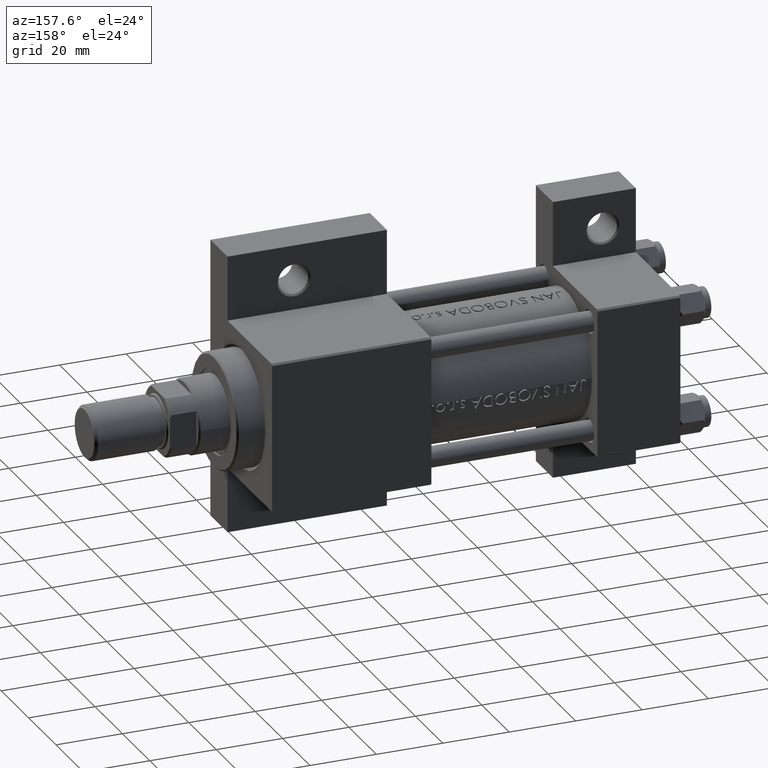
[diagram: clean part render]
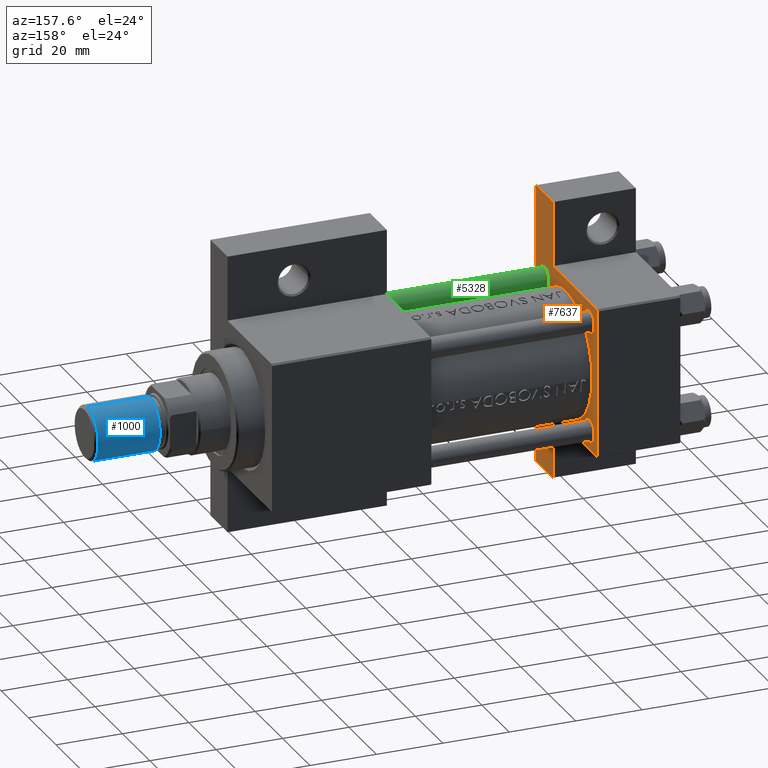
[diagram: same view with three faces highlighted in distinct colors, each labeled with its STEP entity id]
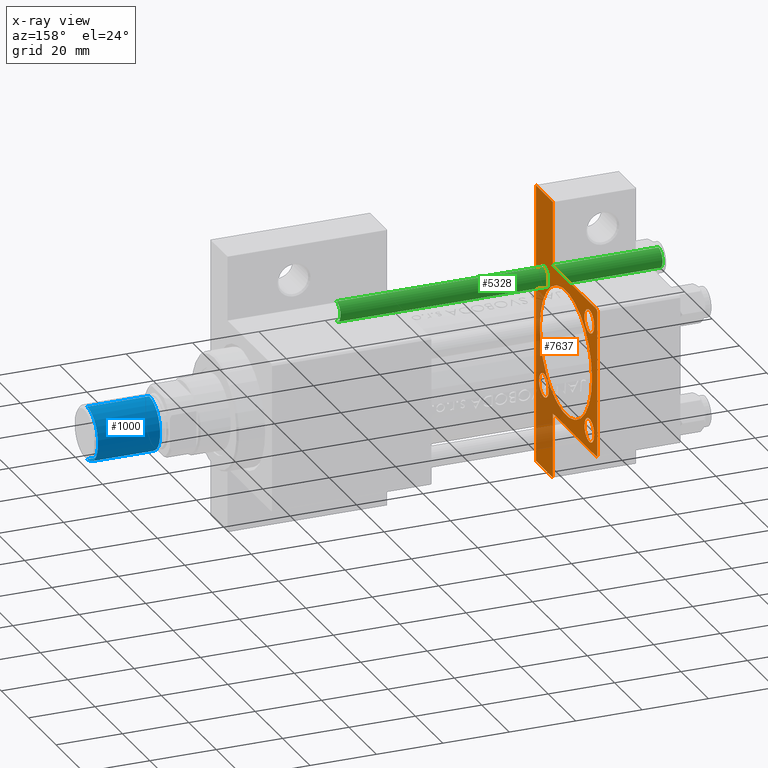
[diagram: x-ray of the same camera — body ghosted, the three highlighted faces saturated]
A machine part, auxiliary view with three faces highlighted in distinct colors.
The next image is the same camera in x-ray (body ghosted, the three faces saturated) — at least one of them is partly hidden behind the body in this view.
Their STEP definitions:

[orange] entity #7637 — the highlighted planar face has unit normal (-1, 0, -0).
#266 = VERTEX_POINT ( 'NONE', #45763 ) ;
#279 = ORIENTED_EDGE ( 'NONE', *, *, #29346, .T. ) ;
#505 = ORIENTED_EDGE ( 'NONE', *, *, #4724, .F. ) ;
#1014 = CARTESIAN_POINT ( 'NONE',  ( 25.00000000000000000, 16.59999999999999787, -13.10000000000000142 ) ) ;
#1082 = ORIENTED_EDGE ( 'NONE', *, *, #17509, .T. ) ;
#1232 = DIRECTION ( 'NONE',  ( 0.000000000000000000, -1.000000000000000000, -7.709882115452476934E-17 ) ) ;
#1313 = DIRECTION ( 'NONE',  ( 1.000000000000000000, -0.000000000000000000, 0.000000000000000000 ) ) ;
#1505 = DIRECTION ( 'NONE',  ( 0.000000000000000000, 0.000000000000000000, 1.000000000000000000 ) ) ;
#1737 = CARTESIAN_POINT ( 'NONE',  ( 25.00000000000000000, 16.59999999999999787, -20.10000000000000853 ) ) ;
#1784 = CARTESIAN_POINT ( 'NONE',  ( 25.00000000000000000, 16.59999999999999787, 16.60000000000000497 ) ) ;
#2246 = AXIS2_PLACEMENT_3D ( 'NONE', #13384, #12897, #1505 ) ;
#2306 = LINE ( 'NONE', #10767, #28794 ) ;
#2767 = VECTOR ( 'NONE', #15166, 1000.000000000000000 ) ;
#3015 = VERTEX_POINT ( 'NONE', #15890 ) ;
#3515 = FACE_BOUND ( 'NONE', #35931, .T. ) ;
#3750 = FACE_OUTER_BOUND ( 'NONE', #30235, .T. ) ;
#4011 = AXIS2_PLACEMENT_3D ( 'NONE', #21269, #7396, #39972 ) ;
#4233 = CARTESIAN_POINT ( 'NONE',  ( 25.00000000000000000, 16.59999999999999787, -16.60000000000000497 ) ) ;
#4312 = EDGE_CURVE ( 'NONE', #24206, #32638, #23291, .T. ) ;
#4600 = CIRCLE ( 'NONE', #40186, 19.00000000000000000 ) ;
#4707 = DIRECTION ( 'NONE',  ( 1.779203565104417375E-16, 1.000000000000000000, 0.000000000000000000 ) ) ;
#4724 = EDGE_CURVE ( 'NONE', #8901, #15880, #25490, .T. ) ;
#4804 = VECTOR ( 'NONE', #9687, 1000.000000000000000 ) ;
#5432 = ORIENTED_EDGE ( 'NONE', *, *, #37800, .F. ) ;
#5582 = CARTESIAN_POINT ( 'NONE',  ( 25.00000000000000000, 21.99999999999999289, 22.50000000000000355 ) ) ;
#6057 = ORIENTED_EDGE ( 'NONE', *, *, #13762, .F. ) ;
#7320 = ORIENTED_EDGE ( 'NONE', *, *, #34872, .T. ) ;
#7382 = ORIENTED_EDGE ( 'NONE', *, *, #26455, .T. ) ;
#7396 = DIRECTION ( 'NONE',  ( -1.000000000000000000, 0.000000000000000000, -0.000000000000000000 ) ) ;
#7637 = ADVANCED_FACE ( 'NONE', ( #13727, #10081, #14444, #3515, #24923, #3750 ), #43875, .F. ) ;
#8119 = CARTESIAN_POINT ( 'NONE',  ( 25.00000000000000000, 0.000000000000000000, -0.4999999999999970024 ) ) ;
#8897 = ORIENTED_EDGE ( 'NONE', *, *, #28440, .T. ) ;
#8901 = VERTEX_POINT ( 'NONE', #10093 ) ;
#9294 = DIRECTION ( 'NONE',  ( 0.000000000000000000, 0.000000000000000000, 1.000000000000000000 ) ) ;
#9405 = EDGE_CURVE ( 'NONE', #3015, #14361, #47587, .T. ) ;
#9457 = LINE ( 'NONE', #5582, #33436 ) ;
#9687 = DIRECTION ( 'NONE',  ( -0.000000000000000000, 1.000000000000000000, 0.000000000000000000 ) ) ;
#9856 = DIRECTION ( 'NONE',  ( -0.000000000000000000, -0.7071067811865525687, -0.7071067811865425767 ) ) ;
#10081 = FACE_BOUND ( 'NONE', #22532, .T. ) ;
#10093 = CARTESIAN_POINT ( 'NONE',  ( 25.00000000000001066, 42.00000000000001421, -9.999999999999994671 ) ) ;
#10221 = EDGE_CURVE ( 'NONE', #40962, #266, #43170, .T. ) ;
#10584 = EDGE_CURVE ( 'NONE', #46879, #25793, #9457, .T. ) ;
#10767 = CARTESIAN_POINT ( 'NONE',  ( 25.00000000000000000, -22.50000000000000000, 22.50000000000000000 ) ) ;
#10872 = VECTOR ( 'NONE', #22301, 1000.000000000000000 ) ;
#11124 = CARTESIAN_POINT ( 'NONE',  ( 25.00000000000001066, 42.00000000000002132, 21.70567772497539138 ) ) ;
#11429 = LINE ( 'NONE', #30650, #28250 ) ;
#11984 = CARTESIAN_POINT ( 'NONE',  ( 25.00000000000000000, 16.59999999999999787, 13.10000000000000142 ) ) ;
#12245 = DIRECTION ( 'NONE',  ( 0.000000000000000000, 0.000000000000000000, 1.000000000000000000 ) ) ;
#12378 = EDGE_CURVE ( 'NONE', #46879, #45827, #39400, .T. ) ;
#12614 = ORIENTED_EDGE ( 'NONE', *, *, #37963, .T. ) ;
#12693 = DIRECTION ( 'NONE',  ( -1.000000000000000000, 0.000000000000000000, -0.000000000000000000 ) ) ;
#12897 = DIRECTION ( 'NONE',  ( -1.000000000000000000, 0.000000000000000000, -0.000000000000000000 ) ) ;
#13105 = CARTESIAN_POINT ( 'NONE',  ( 25.00000000000000000, -21.99999999999997868, 22.50000000000000000 ) ) ;
#13384 = CARTESIAN_POINT ( 'NONE',  ( 25.00000000000000000, 16.59999999999999787, 16.60000000000000497 ) ) ;
#13716 = VECTOR ( 'NONE', #4707, 1000.000000000000000 ) ;
#13727 = FACE_BOUND ( 'NONE', #39677, .T. ) ;
#13762 = EDGE_CURVE ( 'NONE', #23678, #33416, #29805, .T. ) ;
#13887 = AXIS2_PLACEMENT_3D ( 'NONE', #29053, #32943, #26350 ) ;
#13902 = DIRECTION ( 'NONE',  ( 0.000000000000000000, 0.000000000000000000, 1.000000000000000000 ) ) ;
#14145 = DIRECTION ( 'NONE',  ( -1.000000000000000000, 0.000000000000000000, -0.000000000000000000 ) ) ;
#14361 = VERTEX_POINT ( 'NONE', #30617 ) ;
#14444 = FACE_BOUND ( 'NONE', #37087, .T. ) ;
#14483 = CARTESIAN_POINT ( 'NONE',  ( 25.00000000000001066, 42.00000000000001421, -22.50000000000000711 ) ) ;
#14613 = CARTESIAN_POINT ( 'NONE',  ( 25.00000000000000000, -16.59999999999999076, -16.60000000000000853 ) ) ;
#14876 = CARTESIAN_POINT ( 'NONE',  ( 25.00000000000000000, 0.000000000000000000, -0.4999999999999970024 ) ) ;
#15073 = CIRCLE ( 'NONE', #15834, 3.499999999999992895 ) ;
#15166 = DIRECTION ( 'NONE',  ( 0.000000000000000000, -1.734723475976806848E-16, -1.000000000000000000 ) ) ;
#15409 = CARTESIAN_POINT ( 'NONE',  ( 25.00000000000000000, -41.99999999999999289, 21.70567772497540560 ) ) ;
#15834 = AXIS2_PLACEMENT_3D ( 'NONE', #18098, #17384, #25391 ) ;
#15880 = VERTEX_POINT ( 'NONE', #14483 ) ;
#15890 = CARTESIAN_POINT ( 'NONE',  ( 25.00000000000000000, -42.00000000000000000, -9.999999999999994671 ) ) ;
#16097 = CARTESIAN_POINT ( 'NONE',  ( 25.00000000000001066, 42.00000000000002132, -9.999999999999994671 ) ) ;
#16126 = EDGE_CURVE ( 'NONE', #25793, #40962, #11429, .T. ) ;
#16506 = DIRECTION ( 'NONE',  ( 0.000000000000000000, -0.7071067811865474617, 0.7071067811865474617 ) ) ;
#16635 = CARTESIAN_POINT ( 'NONE',  ( 25.00000000000000000, 16.59999999999999787, -16.60000000000000497 ) ) ;
#16656 = CARTESIAN_POINT ( 'NONE',  ( 25.00000000000000000, -16.59999999999999076, 16.60000000000000853 ) ) ;
#17055 = CARTESIAN_POINT ( 'NONE',  ( 25.00000000000000000, 22.50000000000000000, 22.50000000000000355 ) ) ;
#17384 = DIRECTION ( 'NONE',  ( -1.000000000000000000, 0.000000000000000000, -0.000000000000000000 ) ) ;
#17452 = EDGE_CURVE ( 'NONE', #25571, #41015, #15073, .T. ) ;
#17509 = EDGE_CURVE ( 'NONE', #32638, #24206, #27517, .T. ) ;
#18098 = CARTESIAN_POINT ( 'NONE',  ( 25.00000000000000000, -16.59999999999999076, 16.60000000000000853 ) ) ;
#18635 = CIRCLE ( 'NONE', #24059, 3.499999999999992895 ) ;
#18664 = ORIENTED_EDGE ( 'NONE', *, *, #21140, .T. ) ;
#19289 = DIRECTION ( 'NONE',  ( -1.000000000000000000, 0.000000000000000000, -0.000000000000000000 ) ) ;
#20016 = CIRCLE ( 'NONE', #47979, 3.500000000000003109 ) ;
#20307 = CARTESIAN_POINT ( 'NONE',  ( 25.00000000000000000, 2.326828918379970970E-15, -19.49999999999999645 ) ) ;
#20553 = CARTESIAN_POINT ( 'NONE',  ( 25.00000000000000000, 0.000000000000000000, 18.50000000000000355 ) ) ;
#21140 = EDGE_CURVE ( 'NONE', #3015, #31089, #34138, .T. ) ;
#21269 = CARTESIAN_POINT ( 'NONE',  ( 25.00000000000000000, 0.000000000000000000, 0.000000000000000000 ) ) ;
#21286 = CARTESIAN_POINT ( 'NONE',  ( 25.00000000000000000, -22.50000000000000000, 22.00000000000000000 ) ) ;
#21803 = VECTOR ( 'NONE', #9856, 999.9999999999998863 ) ;
#22237 = CARTESIAN_POINT ( 'NONE',  ( 25.00000000000000000, 22.50000000000000000, -22.49999999999999645 ) ) ;
#22301 = DIRECTION ( 'NONE',  ( 0.000000000000000000, -1.734723475976806848E-16, -1.000000000000000000 ) ) ;
#22422 = CIRCLE ( 'NONE', #13887, 3.499999999999989342 ) ;
#22532 = EDGE_LOOP ( 'NONE', ( #1082, #43191 ) ) ;
#23291 = CIRCLE ( 'NONE', #24065, 3.500000000000003109 ) ;
#23423 = DIRECTION ( 'NONE',  ( 0.000000000000000000, 0.000000000000000000, 1.000000000000000000 ) ) ;
#23678 = VERTEX_POINT ( 'NONE', #20307 ) ;
#23717 = CARTESIAN_POINT ( 'NONE',  ( 25.00000000000000000, 16.59999999999999787, 20.10000000000000853 ) ) ;
#23883 = CIRCLE ( 'NONE', #24690, 3.499999999999989342 ) ;
#23926 = EDGE_CURVE ( 'NONE', #45827, #8901, #27313, .T. ) ;
#24059 = AXIS2_PLACEMENT_3D ( 'NONE', #16656, #47681, #42421 ) ;
#24065 = AXIS2_PLACEMENT_3D ( 'NONE', #16635, #46530, #12245 ) ;
#24206 = VERTEX_POINT ( 'NONE', #1014 ) ;
#24386 = AXIS2_PLACEMENT_3D ( 'NONE', #4233, #19289, #33649 ) ;
#24690 = AXIS2_PLACEMENT_3D ( 'NONE', #14613, #14145, #13902 ) ;
#24923 = FACE_BOUND ( 'NONE', #46741, .T. ) ;
#25150 = CARTESIAN_POINT ( 'NONE',  ( 25.00000000000000000, -16.59999999999999076, -13.10000000000001741 ) ) ;
#25185 = LINE ( 'NONE', #22237, #29587 ) ;
#25391 = DIRECTION ( 'NONE',  ( 0.000000000000000000, 0.000000000000000000, 1.000000000000000000 ) ) ;
#25490 = LINE ( 'NONE', #11124, #10872 ) ;
#25571 = VERTEX_POINT ( 'NONE', #42196 ) ;
#25793 = VERTEX_POINT ( 'NONE', #30738 ) ;
#26301 = VERTEX_POINT ( 'NONE', #25150 ) ;
#26350 = DIRECTION ( 'NONE',  ( 0.000000000000000000, 0.000000000000000000, 1.000000000000000000 ) ) ;
#26455 = EDGE_CURVE ( 'NONE', #28624, #26301, #23883, .T. ) ;
#26784 = DIRECTION ( 'NONE',  ( 0.000000000000000000, 0.000000000000000000, 1.000000000000000000 ) ) ;
#26900 = ORIENTED_EDGE ( 'NONE', *, *, #9405, .F. ) ;
#27313 = LINE ( 'NONE', #16097, #13716 ) ;
#27517 = CIRCLE ( 'NONE', #24386, 3.500000000000003109 ) ;
#28218 = VECTOR ( 'NONE', #28253, 1000.000000000000000 ) ;
#28250 = VECTOR ( 'NONE', #1232, 1000.000000000000000 ) ;
#28253 = DIRECTION ( 'NONE',  ( 0.000000000000000000, 0.000000000000000000, -1.000000000000000000 ) ) ;
#28426 = CARTESIAN_POINT ( 'NONE',  ( 25.00000000000000000, -16.59999999999999076, 20.10000000000000142 ) ) ;
#28440 = EDGE_CURVE ( 'NONE', #33597, #33423, #32506, .T. ) ;
#28624 = VERTEX_POINT ( 'NONE', #42226 ) ;
#28794 = VECTOR ( 'NONE', #33148, 1000.000000000000000 ) ;
#29007 = DIRECTION ( 'NONE',  ( 1.000000000000000000, -0.000000000000000000, 0.000000000000000000 ) ) ;
#29053 = CARTESIAN_POINT ( 'NONE',  ( 25.00000000000000000, -16.59999999999999076, -16.60000000000000853 ) ) ;
#29346 = EDGE_CURVE ( 'NONE', #26301, #28624, #22422, .T. ) ;
#29587 = VECTOR ( 'NONE', #36113, 1000.000000000000000 ) ;
#29805 = CIRCLE ( 'NONE', #45337, 19.00000000000000000 ) ;
#30235 = EDGE_LOOP ( 'NONE', ( #47441, #46355, #12614, #26900, #18664, #5432, #505, #37019, #39326, #47879 ) ) ;
#30558 = EDGE_CURVE ( 'NONE', #33416, #23678, #4600, .T. ) ;
#30617 = CARTESIAN_POINT ( 'NONE',  ( 25.00000000000000000, -22.50000000000000000, -9.999999999999980460 ) ) ;
#30650 = CARTESIAN_POINT ( 'NONE',  ( 25.00000000000000000, 22.50000000000000000, 22.50000000000000355 ) ) ;
#30738 = CARTESIAN_POINT ( 'NONE',  ( 25.00000000000000000, 21.99999999999999289, 22.50000000000000355 ) ) ;
#31089 = VERTEX_POINT ( 'NONE', #46277 ) ;
#32506 = CIRCLE ( 'NONE', #2246, 3.500000000000003109 ) ;
#32638 = VERTEX_POINT ( 'NONE', #1737 ) ;
#32943 = DIRECTION ( 'NONE',  ( -1.000000000000000000, 0.000000000000000000, -0.000000000000000000 ) ) ;
#33148 = DIRECTION ( 'NONE',  ( 0.000000000000000000, 0.000000000000000000, -1.000000000000000000 ) ) ;
#33416 = VERTEX_POINT ( 'NONE', #20553 ) ;
#33423 = VERTEX_POINT ( 'NONE', #23717 ) ;
#33436 = VECTOR ( 'NONE', #16506, 1000.000000000000114 ) ;
#33597 = VERTEX_POINT ( 'NONE', #11984 ) ;
#33649 = DIRECTION ( 'NONE',  ( 0.000000000000000000, 0.000000000000000000, 1.000000000000000000 ) ) ;
#34138 = LINE ( 'NONE', #15409, #2767 ) ;
#34338 = ORIENTED_EDGE ( 'NONE', *, *, #17452, .T. ) ;
#34872 = EDGE_CURVE ( 'NONE', #41015, #25571, #18635, .T. ) ;
#35014 = ORIENTED_EDGE ( 'NONE', *, *, #30558, .F. ) ;
#35282 = CARTESIAN_POINT ( 'NONE',  ( 25.00000000000000000, 22.50000000000000000, 21.99999999999999645 ) ) ;
#35697 = CARTESIAN_POINT ( 'NONE',  ( 25.00000000000000000, -41.99999999999999289, -9.999999999999994671 ) ) ;
#35931 = EDGE_LOOP ( 'NONE', ( #8897, #42376 ) ) ;
#36113 = DIRECTION ( 'NONE',  ( 0.000000000000000000, -1.000000000000000000, -2.312964634635742957E-16 ) ) ;
#37019 = ORIENTED_EDGE ( 'NONE', *, *, #23926, .F. ) ;
#37087 = EDGE_LOOP ( 'NONE', ( #34338, #7320 ) ) ;
#37800 = EDGE_CURVE ( 'NONE', #15880, #31089, #25185, .T. ) ;
#37963 = EDGE_CURVE ( 'NONE', #266, #14361, #2306, .T. ) ;
#39326 = ORIENTED_EDGE ( 'NONE', *, *, #12378, .F. ) ;
#39400 = LINE ( 'NONE', #17055, #28218 ) ;
#39677 = EDGE_LOOP ( 'NONE', ( #7382, #279 ) ) ;
#39972 = DIRECTION ( 'NONE',  ( -0.000000000000000000, 0.000000000000000000, 1.000000000000000000 ) ) ;
#40186 = AXIS2_PLACEMENT_3D ( 'NONE', #14876, #29007, #26784 ) ;
#40962 = VERTEX_POINT ( 'NONE', #13105 ) ;
#41015 = VERTEX_POINT ( 'NONE', #28426 ) ;
#41984 = EDGE_CURVE ( 'NONE', #33423, #33597, #20016, .T. ) ;
#42196 = CARTESIAN_POINT ( 'NONE',  ( 25.00000000000000000, -16.59999999999999076, 13.10000000000001386 ) ) ;
#42226 = CARTESIAN_POINT ( 'NONE',  ( 25.00000000000000000, -16.59999999999999076, -20.09999999999999787 ) ) ;
#42376 = ORIENTED_EDGE ( 'NONE', *, *, #41984, .T. ) ;
#42421 = DIRECTION ( 'NONE',  ( 0.000000000000000000, 0.000000000000000000, 1.000000000000000000 ) ) ;
#43170 = LINE ( 'NONE', #21286, #21803 ) ;
#43191 = ORIENTED_EDGE ( 'NONE', *, *, #4312, .T. ) ;
#43875 = PLANE ( 'NONE',  #4011 ) ;
#45073 = CARTESIAN_POINT ( 'NONE',  ( 25.00000000000000711, 22.50000000000001421, -9.999999999999994671 ) ) ;
#45337 = AXIS2_PLACEMENT_3D ( 'NONE', #8119, #1313, #23423 ) ;
#45763 = CARTESIAN_POINT ( 'NONE',  ( 25.00000000000000000, -22.50000000000000000, 22.00000000000000000 ) ) ;
#45827 = VERTEX_POINT ( 'NONE', #45073 ) ;
#46277 = CARTESIAN_POINT ( 'NONE',  ( 25.00000000000000000, -42.00000000000000000, -22.49999999999999289 ) ) ;
#46355 = ORIENTED_EDGE ( 'NONE', *, *, #10221, .T. ) ;
#46530 = DIRECTION ( 'NONE',  ( -1.000000000000000000, 0.000000000000000000, -0.000000000000000000 ) ) ;
#46741 = EDGE_LOOP ( 'NONE', ( #35014, #6057 ) ) ;
#46879 = VERTEX_POINT ( 'NONE', #35282 ) ;
#47441 = ORIENTED_EDGE ( 'NONE', *, *, #16126, .T. ) ;
#47587 = LINE ( 'NONE', #35697, #4804 ) ;
#47681 = DIRECTION ( 'NONE',  ( -1.000000000000000000, 0.000000000000000000, -0.000000000000000000 ) ) ;
#47879 = ORIENTED_EDGE ( 'NONE', *, *, #10584, .T. ) ;
#47979 = AXIS2_PLACEMENT_3D ( 'NONE', #1784, #12693, #9294 ) ;

[blue] entity #1000 — the highlighted cylindrical surface (edge-blend (fillet) strip) has radius 8 mm, axis along (1, -0, -0).
#5 = LINE ( 'NONE', #28505, #1875 ) ;
#1000 = ADVANCED_FACE ( 'NONE', ( #13191 ), #20969, .T. ) ;
#1399 = CIRCLE ( 'NONE', #40176, 8.000000000000000000 ) ;
#1875 = VECTOR ( 'NONE', #9544, 1000.000000000000000 ) ;
#2270 = VERTEX_POINT ( 'NONE', #11649 ) ;
#6272 = CARTESIAN_POINT ( 'NONE',  ( -8.000000000000000000, 0.000000000000000000, 0.8000000000000090372 ) ) ;
#7768 = CARTESIAN_POINT ( 'NONE',  ( 8.000000000000000000, 9.797174393178825657E-16, 0.8000000000000090372 ) ) ;
#9544 = DIRECTION ( 'NONE',  ( -0.000000000000000000, -0.000000000000000000, -1.000000000000000000 ) ) ;
#9546 = CARTESIAN_POINT ( 'NONE',  ( 0.000000000000000000, 0.000000000000000000, 19.50000000000000000 ) ) ;
#10268 = DIRECTION ( 'NONE',  ( 1.000000000000000000, 0.000000000000000000, 0.000000000000000000 ) ) ;
#11649 = CARTESIAN_POINT ( 'NONE',  ( -8.000000000000000000, 0.000000000000000000, 19.50000000000000000 ) ) ;
#13191 = FACE_OUTER_BOUND ( 'NONE', #29369, .T. ) ;
#13988 = EDGE_CURVE ( 'NONE', #32608, #2270, #32970, .T. ) ;
#14370 = VERTEX_POINT ( 'NONE', #7768 ) ;
#14385 = ORIENTED_EDGE ( 'NONE', *, *, #13988, .F. ) ;
#14651 = AXIS2_PLACEMENT_3D ( 'NONE', #9546, #39909, #46740 ) ;
#15863 = AXIS2_PLACEMENT_3D ( 'NONE', #40634, #18041, #10268 ) ;
#16332 = VECTOR ( 'NONE', #38013, 1000.000000000000000 ) ;
#17044 = EDGE_CURVE ( 'NONE', #2270, #33023, #5, .T. ) ;
#17541 = ORIENTED_EDGE ( 'NONE', *, *, #40866, .T. ) ;
#18041 = DIRECTION ( 'NONE',  ( 0.000000000000000000, 0.000000000000000000, 1.000000000000000000 ) ) ;
#20969 = CYLINDRICAL_SURFACE ( 'NONE', #14651, 8.000000000000000000 ) ;
#21919 = CARTESIAN_POINT ( 'NONE',  ( 8.000000000000000000, 9.797174393178825657E-16, 19.50000000000000000 ) ) ;
#23088 = DIRECTION ( 'NONE',  ( -0.000000000000000000, -0.000000000000000000, 1.000000000000000000 ) ) ;
#24564 = ORIENTED_EDGE ( 'NONE', *, *, #17044, .F. ) ;
#27093 = LINE ( 'NONE', #41660, #16332 ) ;
#28505 = CARTESIAN_POINT ( 'NONE',  ( -8.000000000000000000, 0.000000000000000000, 19.50000000000000000 ) ) ;
#29369 = EDGE_LOOP ( 'NONE', ( #14385, #36930, #17541, #24564 ) ) ;
#29923 = CARTESIAN_POINT ( 'NONE',  ( 0.000000000000000000, 0.000000000000000000, 0.8000000000000090372 ) ) ;
#32608 = VERTEX_POINT ( 'NONE', #21919 ) ;
#32970 = CIRCLE ( 'NONE', #15863, 8.000000000000000000 ) ;
#33023 = VERTEX_POINT ( 'NONE', #6272 ) ;
#36930 = ORIENTED_EDGE ( 'NONE', *, *, #47715, .T. ) ;
#37904 = DIRECTION ( 'NONE',  ( 1.000000000000000000, 0.000000000000000000, 0.000000000000000000 ) ) ;
#38013 = DIRECTION ( 'NONE',  ( -0.000000000000000000, -0.000000000000000000, -1.000000000000000000 ) ) ;
#39909 = DIRECTION ( 'NONE',  ( -0.000000000000000000, -0.000000000000000000, -1.000000000000000000 ) ) ;
#40176 = AXIS2_PLACEMENT_3D ( 'NONE', #29923, #23088, #37904 ) ;
#40634 = CARTESIAN_POINT ( 'NONE',  ( 0.000000000000000000, 0.000000000000000000, 19.50000000000000000 ) ) ;
#40866 = EDGE_CURVE ( 'NONE', #14370, #33023, #1399, .T. ) ;
#41660 = CARTESIAN_POINT ( 'NONE',  ( 8.000000000000000000, 9.797174393178825657E-16, 19.50000000000000000 ) ) ;
#46740 = DIRECTION ( 'NONE',  ( -1.000000000000000000, 0.000000000000000000, 0.000000000000000000 ) ) ;
#47715 = EDGE_CURVE ( 'NONE', #32608, #14370, #27093, .T. ) ;

[green] entity #5328 — the highlighted cylindrical surface (edge-blend (fillet) strip) has radius 3 mm, axis along (1, 0, 0).
#1280 = EDGE_CURVE ( 'NONE', #39603, #19025, #12105, .T. ) ;
#2250 = VECTOR ( 'NONE', #15524, 1000.000000000000000 ) ;
#5046 = CARTESIAN_POINT ( 'NONE',  ( 3.000000000000000444, 3.673940397442060361E-16, 97.50000000000001421 ) ) ;
#5168 = DIRECTION ( 'NONE',  ( -0.000000000000000000, -0.000000000000000000, -1.000000000000000000 ) ) ;
#5328 = ADVANCED_FACE ( 'NONE', ( #37244 ), #22675, .T. ) ;
#5567 = EDGE_CURVE ( 'NONE', #15775, #9796, #8812, .T. ) ;
#5610 = ORIENTED_EDGE ( 'NONE', *, *, #47385, .T. ) ;
#8812 = LINE ( 'NONE', #23639, #16352 ) ;
#9796 = VERTEX_POINT ( 'NONE', #35450 ) ;
#12105 = LINE ( 'NONE', #26723, #2250 ) ;
#13220 = CIRCLE ( 'NONE', #43511, 3.000000000000000444 ) ;
#13345 = EDGE_CURVE ( 'NONE', #19025, #9796, #21261, .T. ) ;
#15524 = DIRECTION ( 'NONE',  ( -0.000000000000000000, -0.000000000000000000, -1.000000000000000000 ) ) ;
#15775 = VERTEX_POINT ( 'NONE', #5046 ) ;
#16327 = ORIENTED_EDGE ( 'NONE', *, *, #5567, .F. ) ;
#16352 = VECTOR ( 'NONE', #5168, 1000.000000000000000 ) ;
#17507 = EDGE_LOOP ( 'NONE', ( #16327, #5610, #23356, #20986 ) ) ;
#17633 = CARTESIAN_POINT ( 'NONE',  ( 0.000000000000000000, 0.000000000000000000, 97.50000000000001421 ) ) ;
#18010 = CARTESIAN_POINT ( 'NONE',  ( -3.000000000000000444, 0.000000000000000000, 0.5000000000000281997 ) ) ;
#19025 = VERTEX_POINT ( 'NONE', #18010 ) ;
#20986 = ORIENTED_EDGE ( 'NONE', *, *, #13345, .T. ) ;
#21261 = CIRCLE ( 'NONE', #46870, 3.000000000000000444 ) ;
#22530 = AXIS2_PLACEMENT_3D ( 'NONE', #34343, #45040, #34107 ) ;
#22675 = CYLINDRICAL_SURFACE ( 'NONE', #22530, 3.000000000000000444 ) ;
#22873 = DIRECTION ( 'NONE',  ( -0.000000000000000000, -0.000000000000000000, 1.000000000000000000 ) ) ;
#23356 = ORIENTED_EDGE ( 'NONE', *, *, #1280, .T. ) ;
#23639 = CARTESIAN_POINT ( 'NONE',  ( 3.000000000000000444, 3.673940397442060361E-16, 98.00000000000000000 ) ) ;
#25410 = DIRECTION ( 'NONE',  ( 1.000000000000000000, 0.000000000000000000, 0.000000000000000000 ) ) ;
#26538 = CARTESIAN_POINT ( 'NONE',  ( 0.000000000000000000, 0.000000000000000000, 0.5000000000000281997 ) ) ;
#26723 = CARTESIAN_POINT ( 'NONE',  ( -3.000000000000000444, 0.000000000000000000, 98.00000000000000000 ) ) ;
#32486 = DIRECTION ( 'NONE',  ( 0.000000000000000000, 0.000000000000000000, -1.000000000000000000 ) ) ;
#33852 = CARTESIAN_POINT ( 'NONE',  ( -3.000000000000000444, 0.000000000000000000, 97.50000000000001421 ) ) ;
#34107 = DIRECTION ( 'NONE',  ( -1.000000000000000000, 0.000000000000000000, 0.000000000000000000 ) ) ;
#34343 = CARTESIAN_POINT ( 'NONE',  ( 0.000000000000000000, 0.000000000000000000, 98.00000000000000000 ) ) ;
#35450 = CARTESIAN_POINT ( 'NONE',  ( 3.000000000000000444, 3.673940397442060361E-16, 0.5000000000000281997 ) ) ;
#37244 = FACE_OUTER_BOUND ( 'NONE', #17507, .T. ) ;
#37687 = DIRECTION ( 'NONE',  ( 1.000000000000000000, 0.000000000000000000, 0.000000000000000000 ) ) ;
#39603 = VERTEX_POINT ( 'NONE', #33852 ) ;
#43511 = AXIS2_PLACEMENT_3D ( 'NONE', #17633, #32486, #25410 ) ;
#45040 = DIRECTION ( 'NONE',  ( -0.000000000000000000, -0.000000000000000000, -1.000000000000000000 ) ) ;
#46870 = AXIS2_PLACEMENT_3D ( 'NONE', #26538, #22873, #37687 ) ;
#47385 = EDGE_CURVE ( 'NONE', #15775, #39603, #13220, .T. ) ;